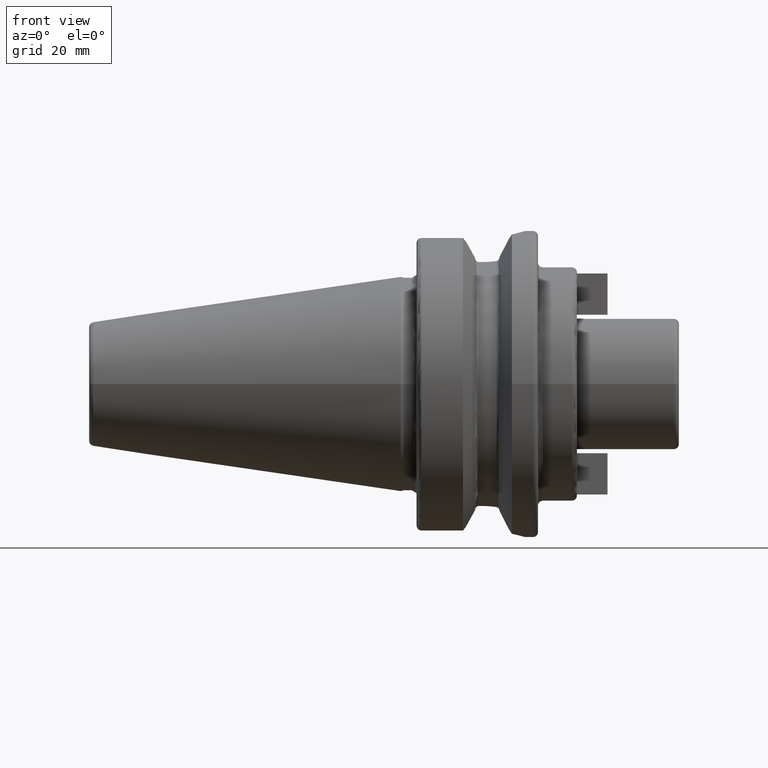
[diagram: clean part render]
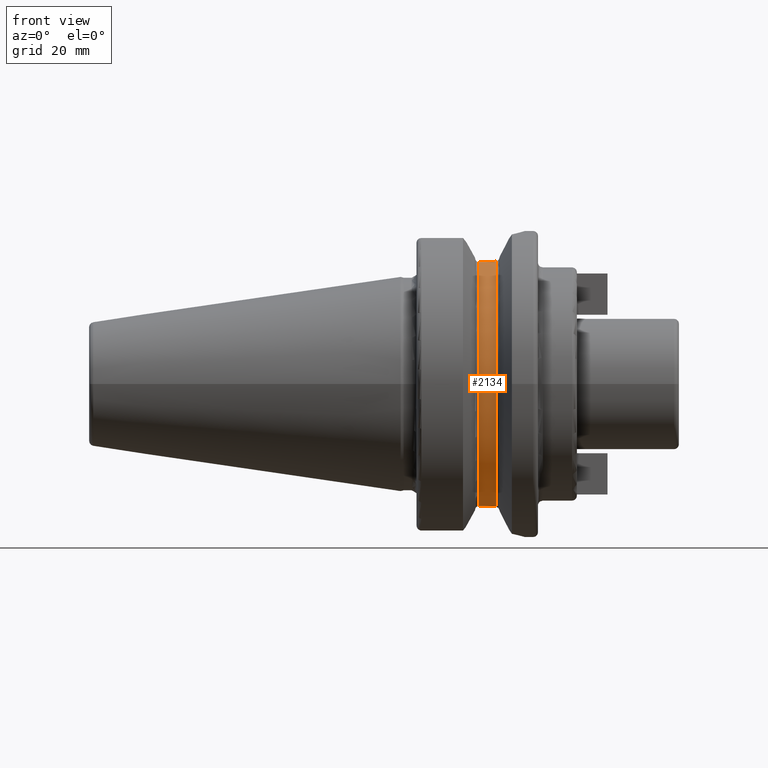
[diagram: same view with one face highlighted and labeled with its STEP entity id]
A machine part, front view. The second image highlights one B-rep face of the part: STEP entity #2134.
In plain terms, the highlighted cylindrical surface (partial cylindrical patch) has radius 26.375 mm, axis along (1, 0, 0).
Its self-contained STEP definition (entity closure, byte-faithful):
#308=DIRECTION('',(1.E0,0.E0,0.E0));
#309=VECTOR('',#308,3.425E-1);
#310=CARTESIAN_POINT('',(1.48125E1,-8.095E0,-2.510202382279E1));
#311=LINE('',#310,#309);
#367=CARTESIAN_POINT('',(1.83875E1,-7.421588020768E0,-2.530929979770E1));
#368=CARTESIAN_POINT('',(1.804170386611E1,-7.572200800631E0,-2.526513476699E1));
#369=CARTESIAN_POINT('',(1.734035783411E1,-7.820815511030E0,-2.518941465742E1));
#370=CARTESIAN_POINT('',(1.625266243851E1,-8.045449936191E0,-2.511808739805E1));
#371=CARTESIAN_POINT('',(1.552274116086E1,-8.095E0,-2.510202382279E1));
#372=CARTESIAN_POINT('',(1.5155E1,-8.095E0,-2.510202382279E1));
#374=CARTESIAN_POINT('',(1.48125E1,0.E0,0.E0));
#375=DIRECTION('',(-1.E0,0.E0,0.E0));
#376=DIRECTION('',(0.E0,-3.069194312796E-1,-9.517355003902E-1));
#377=AXIS2_PLACEMENT_3D('',#374,#375,#376);
#379=CARTESIAN_POINT('',(1.5155E1,-8.095E0,2.510202382279E1));
#380=CARTESIAN_POINT('',(1.552274116086E1,-8.095E0,2.510202382279E1));
#381=CARTESIAN_POINT('',(1.625266243851E1,-8.045449936191E0,2.511808739805E1));
#382=CARTESIAN_POINT('',(1.734035783411E1,-7.820815511030E0,2.518941465742E1));
#383=CARTESIAN_POINT('',(1.804170386611E1,-7.572200800631E0,2.526513476699E1));
#384=CARTESIAN_POINT('',(1.83875E1,-7.421588020768E0,2.530929979770E1));
#465=CARTESIAN_POINT('',(1.83875E1,0.E0,0.E0));
#466=DIRECTION('',(-1.E0,0.E0,0.E0));
#467=DIRECTION('',(0.E0,-2.813872235362E-1,-9.595943051262E-1));
#468=AXIS2_PLACEMENT_3D('',#465,#466,#467);
#551=DIRECTION('',(1.E0,0.E0,0.E0));
#552=VECTOR('',#551,3.425E-1);
#553=CARTESIAN_POINT('',(1.48125E1,-8.095E0,2.510202382279E1));
#554=LINE('',#553,#552);
#1392=CARTESIAN_POINT('',(1.48125E1,-8.095E0,-2.510202382279E1));
#1393=CARTESIAN_POINT('',(1.48125E1,-8.095E0,2.510202382279E1));
#1394=VERTEX_POINT('',#1392);
#1395=VERTEX_POINT('',#1393);
#1404=CARTESIAN_POINT('',(1.83875E1,-7.421588020768E0,-2.530929979770E1));
#1405=CARTESIAN_POINT('',(1.83875E1,-7.421588020768E0,2.530929979770E1));
#1406=VERTEX_POINT('',#1404);
#1407=VERTEX_POINT('',#1405);
#1533=CARTESIAN_POINT('',(1.5155E1,-8.095E0,2.510202382279E1));
#1534=VERTEX_POINT('',#1533);
#1541=CARTESIAN_POINT('',(1.5155E1,-8.095E0,-2.510202382279E1));
#1542=VERTEX_POINT('',#1541);
#2117=CARTESIAN_POINT('',(1.106999478413E1,0.E0,0.E0));
#2118=DIRECTION('',(1.E0,0.E0,0.E0));
#2119=DIRECTION('',(0.E0,-1.E0,0.E0));
#2120=AXIS2_PLACEMENT_3D('',#2117,#2118,#2119);
#2121=CYLINDRICAL_SURFACE('',#2120,2.6375E1);
#2123=ORIENTED_EDGE('',*,*,#2122,.T.);
#2124=ORIENTED_EDGE('',*,*,#2056,.F.);
#2125=ORIENTED_EDGE('',*,*,#2090,.T.);
#2127=ORIENTED_EDGE('',*,*,#2126,.T.);
#2129=ORIENTED_EDGE('',*,*,#2128,.T.);
#2131=ORIENTED_EDGE('',*,*,#2130,.F.);
#2132=EDGE_LOOP('',(#2123,#2124,#2125,#2127,#2129,#2131));
#2133=FACE_OUTER_BOUND('',#2132,.F.);
#2134=ADVANCED_FACE('',(#2133),#2121,.T.);
#373=B_SPLINE_CURVE_WITH_KNOTS('',3,(#367,#368,#369,#370,#371,#372),
.UNSPECIFIED.,.F.,.F.,(4,1,1,4),(0.E0,3.333333333333E-1,6.666666666667E-1,1.E0),
.UNSPECIFIED.);
#378=CIRCLE('',#377,2.6375E1);
#385=B_SPLINE_CURVE_WITH_KNOTS('',3,(#379,#380,#381,#382,#383,#384),
.UNSPECIFIED.,.F.,.F.,(4,1,1,4),(0.E0,3.333333333333E-1,6.666666666667E-1,1.E0),
.UNSPECIFIED.);
#469=CIRCLE('',#468,2.6375E1);
#2056=EDGE_CURVE('',#1394,#1542,#311,.T.);
#2090=EDGE_CURVE('',#1394,#1395,#378,.T.);
#2122=EDGE_CURVE('',#1406,#1542,#373,.T.);
#2126=EDGE_CURVE('',#1395,#1534,#554,.T.);
#2128=EDGE_CURVE('',#1534,#1407,#385,.T.);
#2130=EDGE_CURVE('',#1406,#1407,#469,.T.);